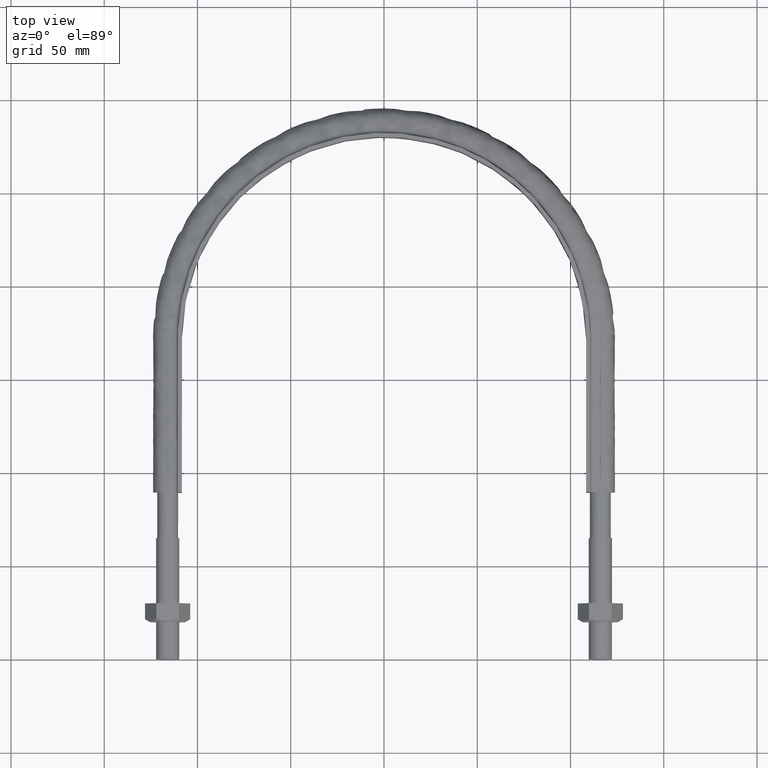
[diagram: clean part render]
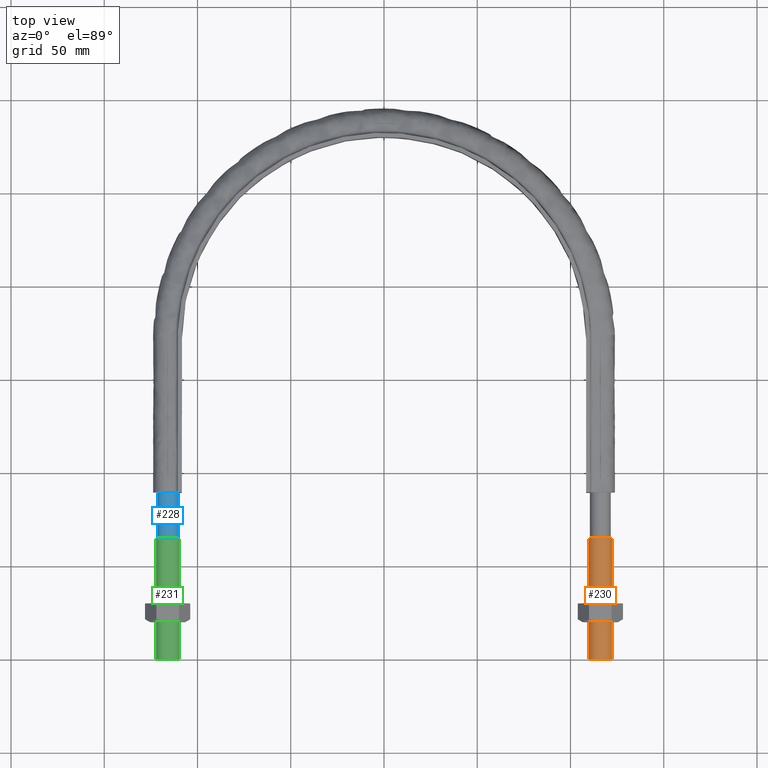
[diagram: same view with three faces highlighted in distinct colors, each labeled with its STEP entity id]
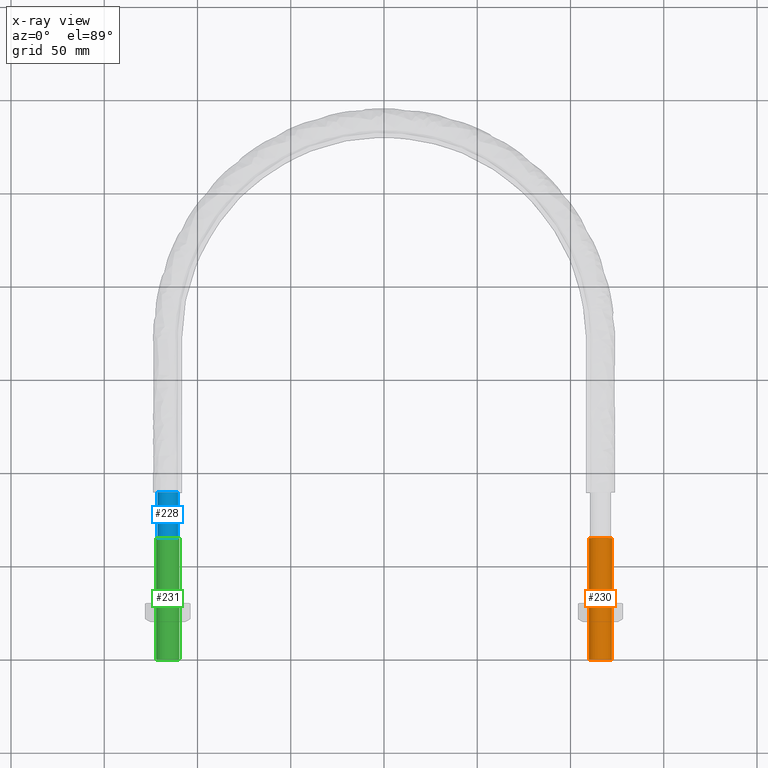
[diagram: x-ray of the same camera — body ghosted, the three highlighted faces saturated]
A machine part, top view with three faces highlighted in distinct colors.
The next image is the same camera in x-ray (body ghosted, the three faces saturated) — at least one of them is partly hidden behind the body in this view.
Their STEP definitions:

[orange] entity #230 — the highlighted cylindrical surface (bore or boss wall) has radius 6.25 mm, axis along (-0, -1, 0).
#230 = ADVANCED_FACE( '', ( #288, #289 ), #290, .T. );
#288 = FACE_OUTER_BOUND( '', #1289, .T. );
#289 = FACE_OUTER_BOUND( '', #1290, .T. );
#290 = CYLINDRICAL_SURFACE( '', #1291, 6.25000000000003 );
#1289 = EDGE_LOOP( '', ( #1465 ) );
#1290 = EDGE_LOOP( '', ( #1466 ) );
#1291 = AXIS2_PLACEMENT_3D( '', #1467, #1468, #1469 );
#1465 = ORIENTED_EDGE( '', *, *, #1686, .F. );
#1466 = ORIENTED_EDGE( '', *, *, #1685, .T. );
#1467 = CARTESIAN_POINT( '', ( 116.000000000000, 370.000000000000, 0.000000000000000 ) );
#1468 = DIRECTION( '', ( -1.83690953073357E-016, -1.00000000000000, 0.000000000000000 ) );
#1469 = DIRECTION( '', ( -1.00000000000000, 1.83690953073357E-016, 0.000000000000000 ) );
#1685 = EDGE_CURVE( '', #1795, #1795, #1796, .F. );
#1686 = EDGE_CURVE( '', #1797, #1797, #1798, .F. );
#1795 = VERTEX_POINT( '', #2141 );
#1796 = CIRCLE( '', #2142, 6.25000000000003 );
#1797 = VERTEX_POINT( '', #2143 );
#1798 = CIRCLE( '', #2144, 6.25000000000003 );
#2141 = CARTESIAN_POINT( '', ( 116.000000000000, -5.74245986591053E-014, -6.25000000000003 ) );
#2142 = AXIS2_PLACEMENT_3D( '', #2397, #2398, #2399 );
#2143 = CARTESIAN_POINT( '', ( 122.250000000000, 65.0000000000000, 0.000000000000000 ) );
#2144 = AXIS2_PLACEMENT_3D( '', #2400, #2401, #2402 );
#2397 = CARTESIAN_POINT( '', ( 116.000000000000, -5.55111512312578E-014, 0.000000000000000 ) );
#2398 = DIRECTION( '', ( -2.44921270764475E-016, -1.00000000000000, 3.06151588455594E-016 ) );
#2399 = DIRECTION( '', ( 0.000000000000000, -3.06151588455594E-016, -1.00000000000000 ) );
#2400 = CARTESIAN_POINT( '', ( 116.000000000000, 65.0000000000000, 0.000000000000000 ) );
#2401 = DIRECTION( '', ( -1.83690953073357E-016, -1.00000000000000, 0.000000000000000 ) );
#2402 = DIRECTION( '', ( 1.00000000000000, -1.83690953073357E-016, 0.000000000000000 ) );

[blue] entity #228 — the highlighted cylindrical surface (bore or boss wall) has radius 5.6 mm, axis along (0, 1, -0).
#228 = ADVANCED_FACE( '', ( #283, #284 ), #285, .T. );
#283 = FACE_OUTER_BOUND( '', #1284, .T. );
#284 = FACE_OUTER_BOUND( '', #1285, .T. );
#285 = CYLINDRICAL_SURFACE( '', #1286, 5.59999999999999 );
#1284 = EDGE_LOOP( '', ( #1449 ) );
#1285 = EDGE_LOOP( '', ( #1450, #1451, #1452, #1453, #1454, #1455, #1456, #1457 ) );
#1286 = AXIS2_PLACEMENT_3D( '', #1458, #1459, #1460 );
#1449 = ORIENTED_EDGE( '', *, *, #1684, .F. );
#1450 = ORIENTED_EDGE( '', *, *, #1683, .F. );
#1451 = ORIENTED_EDGE( '', *, *, #1682, .F. );
#1452 = ORIENTED_EDGE( '', *, *, #1681, .F. );
#1453 = ORIENTED_EDGE( '', *, *, #1680, .F. );
#1454 = ORIENTED_EDGE( '', *, *, #1679, .F. );
#1455 = ORIENTED_EDGE( '', *, *, #1678, .F. );
#1456 = ORIENTED_EDGE( '', *, *, #1677, .F. );
#1457 = ORIENTED_EDGE( '', *, *, #1676, .F. );
#1458 = CARTESIAN_POINT( '', ( -116.000000000000, 89.5000000000000, -2.74005671667757E-014 ) );
#1459 = DIRECTION( '', ( 2.44921270764475E-016, 1.00000000000000, -3.06151588455594E-016 ) );
#1460 = DIRECTION( '', ( 1.00000000000000, -2.44921270764475E-016, -1.50944387002457E-047 ) );
#1676 = EDGE_CURVE( '', #1777, #1778, #1779, .T. );
#1677 = EDGE_CURVE( '', #1778, #1780, #1781, .T. );
#1678 = EDGE_CURVE( '', #1780, #1782, #1783, .T. );
#1679 = EDGE_CURVE( '', #1782, #1784, #1785, .T. );
#1680 = EDGE_CURVE( '', #1784, #1786, #1787, .T. );
#1681 = EDGE_CURVE( '', #1786, #1788, #1789, .T. );
#1682 = EDGE_CURVE( '', #1788, #1790, #1791, .T. );
#1683 = EDGE_CURVE( '', #1790, #1777, #1792, .T. );
#1684 = EDGE_CURVE( '', #1793, #1793, #1794, .F. );
#1777 = VERTEX_POINT( '', #2099 );
#1778 = VERTEX_POINT( '', #2100 );
#1779 = B_SPLINE_CURVE_WITH_KNOTS( '', 3, ( #2101, #2102, #2103, #2104 ), .UNSPECIFIED., .F., .F., ( 4, 4 ), ( 0.000000000000000, 1.00000000000000 ), .UNSPECIFIED. );
#1780 = VERTEX_POINT( '', #2105 );
#1781 = B_SPLINE_CURVE_WITH_KNOTS( '', 3, ( #2106, #2107, #2108, #2109 ), .UNSPECIFIED., .F., .F., ( 4, 4 ), ( 0.000000000000000, 1.00000000000000 ), .UNSPECIFIED. );
#1782 = VERTEX_POINT( '', #2110 );
#1783 = B_SPLINE_CURVE_WITH_KNOTS( '', 3, ( #2111, #2112, #2113, #2114 ), .UNSPECIFIED., .F., .F., ( 4, 4 ), ( 0.000000000000000, 1.00000000000000 ), .UNSPECIFIED. );
#1784 = VERTEX_POINT( '', #2115 );
#1785 = B_SPLINE_CURVE_WITH_KNOTS( '', 3, ( #2116, #2117, #2118, #2119 ), .UNSPECIFIED., .F., .F., ( 4, 4 ), ( 0.000000000000000, 1.00000000000000 ), .UNSPECIFIED. );
#1786 = VERTEX_POINT( '', #2120 );
#1787 = B_SPLINE_CURVE_WITH_KNOTS( '', 3, ( #2121, #2122, #2123, #2124 ), .UNSPECIFIED., .F., .F., ( 4, 4 ), ( 0.000000000000000, 1.00000000000000 ), .UNSPECIFIED. );
#1788 = VERTEX_POINT( '', #2125 );
#1789 = B_SPLINE_CURVE_WITH_KNOTS( '', 3, ( #2126, #2127, #2128, #2129 ), .UNSPECIFIED., .F., .F., ( 4, 4 ), ( 0.000000000000000, 1.00000000000000 ), .UNSPECIFIED. );
#1790 = VERTEX_POINT( '', #2130 );
#1791 = B_SPLINE_CURVE_WITH_KNOTS( '', 3, ( #2131, #2132, #2133, #2134 ), .UNSPECIFIED., .F., .F., ( 4, 4 ), ( 0.000000000000000, 1.00000000000000 ), .UNSPECIFIED. );
#1792 = B_SPLINE_CURVE_WITH_KNOTS( '', 3, ( #2135, #2136, #2137, #2138 ), .UNSPECIFIED., .F., .F., ( 4, 4 ), ( 0.000000000000000, 1.00000000000000 ), .UNSPECIFIED. );
#1793 = VERTEX_POINT( '', #2139 );
#1794 = CIRCLE( '', #2140, 5.59999999999999 );
#2099 = CARTESIAN_POINT( '', ( -110.400000000000, 89.5000000000002, 6.88494635144106E-014 ) );
#2100 = CARTESIAN_POINT( '', ( -112.040202025355, 89.5000000000000, -3.95979797464440 ) );
#2101 = CARTESIAN_POINT( '', ( -110.400000000000, 89.5000000000004, 1.11347563114261E-013 ) );
#2102 = CARTESIAN_POINT( '', ( -110.400000000000, 89.5000000000004, -1.46274169979680 ) );
#2103 = CARTESIAN_POINT( '', ( -111.005887450304, 89.5000000000004, -2.92548339959369 ) );
#2104 = CARTESIAN_POINT( '', ( -112.040202025355, 89.5000000000004, -3.95979797464444 ) );
#2105 = CARTESIAN_POINT( '', ( -116.000000000000, 89.5000000000000, -5.60000000000002 ) );
#2106 = CARTESIAN_POINT( '', ( -112.040202025379, 89.5000000000004, -3.95979797466840 ) );
#2107 = CARTESIAN_POINT( '', ( -113.074516600428, 89.5000000000004, -4.99411254970469 ) );
#2108 = CARTESIAN_POINT( '', ( -114.537258300214, 89.5000000000004, -5.59999999999999 ) );
#2109 = CARTESIAN_POINT( '', ( -116.000000000000, 89.5000000000004, -5.59999999999999 ) );
#2110 = CARTESIAN_POINT( '', ( -119.959797974650, 89.5000000000000, -3.95979797463928 ) );
#2111 = CARTESIAN_POINT( '', ( -116.000000000008, 89.5000000000004, -5.60000000000007 ) );
#2112 = CARTESIAN_POINT( '', ( -117.462741699804, 89.5000000000004, -5.59999999999810 ) );
#2113 = CARTESIAN_POINT( '', ( -118.925483399600, 89.5000000000004, -4.99411254969220 ) );
#2114 = CARTESIAN_POINT( '', ( -119.959797974650, 89.5000000000004, -3.95979797463943 ) );
#2115 = CARTESIAN_POINT( '', ( -121.600000000000, 89.5000000000000, 1.22458835622041E-014 ) );
#2116 = CARTESIAN_POINT( '', ( -119.959797974664, 89.5000000000004, -3.95979797462534 ) );
#2117 = CARTESIAN_POINT( '', ( -120.994112549707, 89.5000000000004, -2.92548339957262 ) );
#2118 = CARTESIAN_POINT( '', ( -121.600000000005, 89.5000000000004, -1.46274169977786 ) );
#2119 = CARTESIAN_POINT( '', ( -121.600000000000, 89.5000000000004, 1.81416133777800E-011 ) );
#2120 = CARTESIAN_POINT( '', ( -119.959797974644, 89.5000000000000, 3.95979797464519 ) );
#2121 = CARTESIAN_POINT( '', ( -121.600000000000, 89.5000000000004, 1.91595936048874E-011 ) );
#2122 = CARTESIAN_POINT( '', ( -121.599999999995, 89.5000000000004, 1.46274169981000 ) );
#2123 = CARTESIAN_POINT( '', ( -120.994112549691, 89.5000000000004, 2.92548339959904 ) );
#2124 = CARTESIAN_POINT( '', ( -119.959797974644, 89.5000000000004, 3.95979797464542 ) );
#2125 = CARTESIAN_POINT( '', ( -116.000000000000, 89.5000000000000, 5.59999999999997 ) );
#2126 = CARTESIAN_POINT( '', ( -119.959797974644, 89.5000000000004, 3.95979797464542 ) );
#2127 = CARTESIAN_POINT( '', ( -118.925483399593, 89.5000000000004, 4.99411254969572 ) );
#2128 = CARTESIAN_POINT( '', ( -117.462741699797, 89.5000000000004, 5.60000000000000 ) );
#2129 = CARTESIAN_POINT( '', ( -116.000000000000, 89.5000000000004, 5.59999999999999 ) );
#2130 = CARTESIAN_POINT( '', ( -112.040202025356, 89.5000000000000, 3.95979797464564 ) );
#2131 = CARTESIAN_POINT( '', ( -116.000000000000, 89.5000000000004, 5.59999999999998 ) );
#2132 = CARTESIAN_POINT( '', ( -114.537258300204, 89.5000000000004, 5.60000000000007 ) );
#2133 = CARTESIAN_POINT( '', ( -113.074516600407, 89.5000000000004, 4.99411254969574 ) );
#2134 = CARTESIAN_POINT( '', ( -112.040202025356, 89.5000000000004, 3.95979797464551 ) );
#2135 = CARTESIAN_POINT( '', ( -112.040202025356, 89.5000000000004, 3.95979797464548 ) );
#2136 = CARTESIAN_POINT( '', ( -111.005887450305, 89.5000000000004, 2.92548339959468 ) );
#2137 = CARTESIAN_POINT( '', ( -110.400000000000, 89.5000000000004, 1.46274169979734 ) );
#2138 = CARTESIAN_POINT( '', ( -110.400000000000, 89.5000000000004, -1.08420217248550E-016 ) );
#2139 = CARTESIAN_POINT( '', ( -116.000000000000, 65.0000000000000, 5.59999999999997 ) );
#2140 = AXIS2_PLACEMENT_3D( '', #2394, #2395, #2396 );
#2394 = CARTESIAN_POINT( '', ( -116.000000000000, 65.0000000000000, -1.98998532496136E-014 ) );
#2395 = DIRECTION( '', ( 2.09140834898085E-079, 1.00000000000000, 3.37423662409982E-032 ) );
#2396 = DIRECTION( '', ( 0.000000000000000, -3.37423662409982E-032, 1.00000000000000 ) );

[green] entity #231 — the highlighted cylindrical surface (bore or boss wall) has radius 6.25 mm, axis along (-0, -1, 0).
#231 = ADVANCED_FACE( '', ( #291, #292 ), #293, .T. );
#291 = FACE_OUTER_BOUND( '', #1292, .T. );
#292 = FACE_OUTER_BOUND( '', #1293, .T. );
#293 = CYLINDRICAL_SURFACE( '', #1294, 6.24999999999996 );
#1292 = EDGE_LOOP( '', ( #1470 ) );
#1293 = EDGE_LOOP( '', ( #1471 ) );
#1294 = AXIS2_PLACEMENT_3D( '', #1472, #1473, #1474 );
#1470 = ORIENTED_EDGE( '', *, *, #1687, .T. );
#1471 = ORIENTED_EDGE( '', *, *, #1688, .F. );
#1472 = CARTESIAN_POINT( '', ( -116.000000000000, 370.000000000000, 0.000000000000000 ) );
#1473 = DIRECTION( '', ( -1.83690953073357E-016, -1.00000000000000, 0.000000000000000 ) );
#1474 = DIRECTION( '', ( -1.00000000000000, 1.83690953073357E-016, 0.000000000000000 ) );
#1687 = EDGE_CURVE( '', #1799, #1799, #1800, .F. );
#1688 = EDGE_CURVE( '', #1801, #1801, #1802, .T. );
#1799 = VERTEX_POINT( '', #2145 );
#1800 = CIRCLE( '', #2146, 6.24999999999996 );
#1801 = VERTEX_POINT( '', #2147 );
#1802 = CIRCLE( '', #2148, 6.24999999999996 );
#2145 = CARTESIAN_POINT( '', ( -116.000000000000, 5.35977038034104E-014, -6.24999999999996 ) );
#2146 = AXIS2_PLACEMENT_3D( '', #2403, #2404, #2405 );
#2147 = CARTESIAN_POINT( '', ( -116.000000000000, 65.0000000000000, 6.24999999999996 ) );
#2148 = AXIS2_PLACEMENT_3D( '', #2406, #2407, #2408 );
#2403 = CARTESIAN_POINT( '', ( -116.000000000000, 5.55111512312578E-014, 0.000000000000000 ) );
#2404 = DIRECTION( '', ( -2.44921270764476E-016, -1.00000000000000, 3.06151588455594E-016 ) );
#2405 = DIRECTION( '', ( 0.000000000000000, -3.06151588455594E-016, -1.00000000000000 ) );
#2406 = CARTESIAN_POINT( '', ( -116.000000000000, 65.0000000000000, 0.000000000000000 ) );
#2407 = DIRECTION( '', ( 2.09140834898085E-079, 1.00000000000000, 3.37423662409982E-032 ) );
#2408 = DIRECTION( '', ( 0.000000000000000, -3.37423662409982E-032, 1.00000000000000 ) );